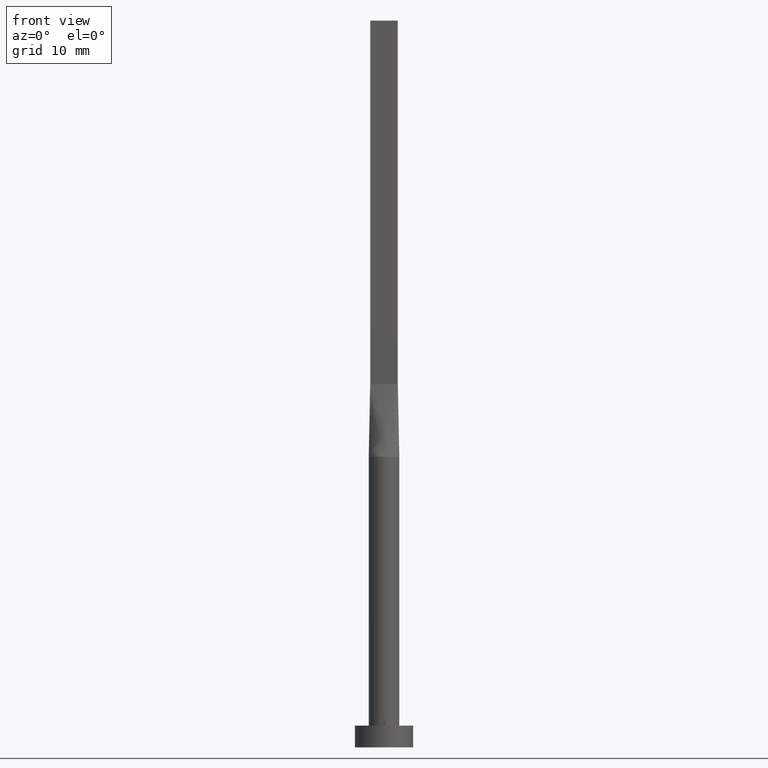
[diagram: clean part render]
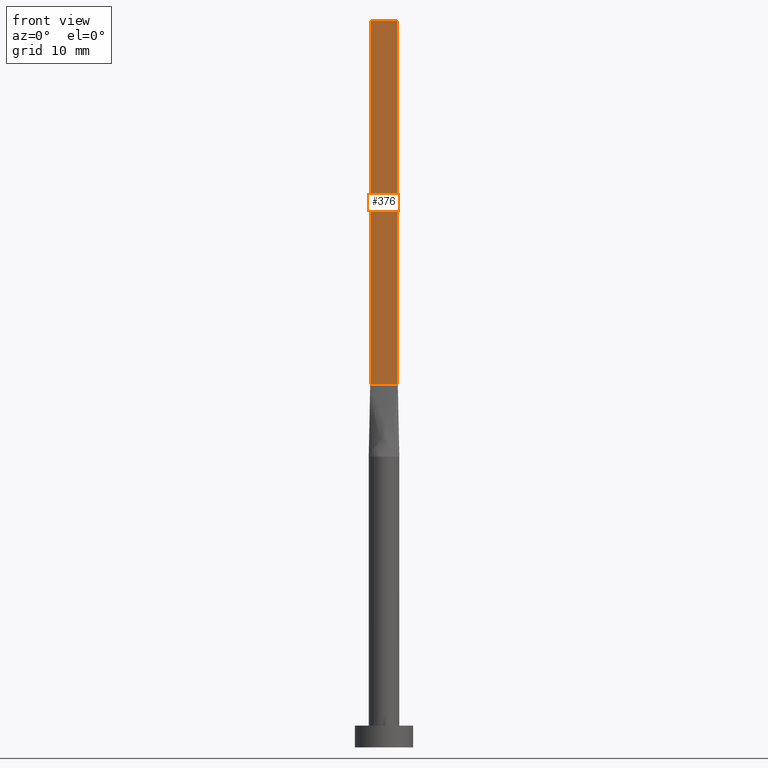
[diagram: same view with one face highlighted and labeled with its STEP entity id]
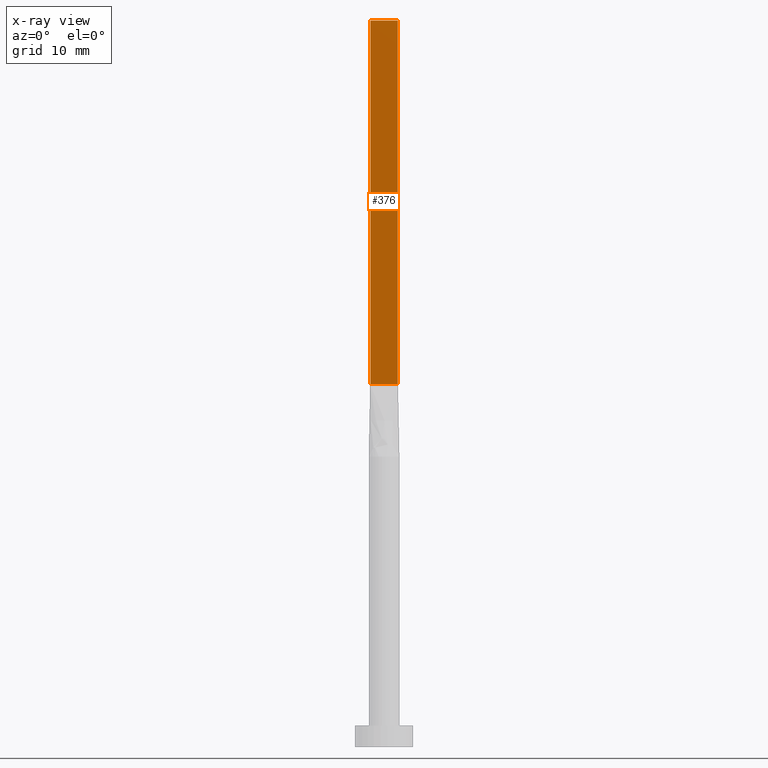
[diagram: x-ray of the same camera — body ghosted, the highlighted face saturated]
A machine part, front view. The second image highlights one B-rep face of the part: STEP entity #376.
The next image is the same camera in x-ray: the body ghosted, the highlighted face saturated — about 0% of this face is hidden behind the body in this view.
In plain terms, the highlighted planar face has unit normal (0, 1, -0).
Its self-contained STEP definition (entity closure, byte-faithful):
#26 = VECTOR ( 'NONE', #366, 1000.000000000000000 ) ;
#28 = CARTESIAN_POINT ( 'NONE',  ( 1.899999999999999023, -0.4999999999999997780, 50.00000000000000000 ) ) ;
#44 = CARTESIAN_POINT ( 'NONE',  ( -1.899999999999999911, -0.4999999999999995559, 100.0000000000000000 ) ) ;
#58 = CARTESIAN_POINT ( 'NONE',  ( -1.899999999999999911, -0.4999999999999995559, 50.00000000000000000 ) ) ;
#60 = PLANE ( 'NONE',  #316 ) ;
#82 = VERTEX_POINT ( 'NONE', #58 ) ;
#130 = VECTOR ( 'NONE', #322, 1000.000000000000000 ) ;
#137 = EDGE_CURVE ( 'NONE', #176, #82, #273, .T. ) ;
#172 = DIRECTION ( 'NONE',  ( -0.000000000000000000, -0.000000000000000000, -1.000000000000000000 ) ) ;
#174 = VECTOR ( 'NONE', #260, 1000.000000000000000 ) ;
#176 = VERTEX_POINT ( 'NONE', #315 ) ;
#196 = DIRECTION ( 'NONE',  ( 5.706327223607920020E-17, 1.000000000000000000, -0.000000000000000000 ) ) ;
#218 = ORIENTED_EDGE ( 'NONE', *, *, #511, .F. ) ;
#248 = ORIENTED_EDGE ( 'NONE', *, *, #269, .F. ) ;
#260 = DIRECTION ( 'NONE',  ( -0.000000000000000000, -0.000000000000000000, -1.000000000000000000 ) ) ;
#269 = EDGE_CURVE ( 'NONE', #176, #462, #458, .T. ) ;
#273 = LINE ( 'NONE', #44, #428 ) ;
#286 = DIRECTION ( 'NONE',  ( -1.000000000000000000, 5.706327223607920020E-17, 0.000000000000000000 ) ) ;
#287 = EDGE_CURVE ( 'NONE', #82, #477, #490, .T. ) ;
#315 = CARTESIAN_POINT ( 'NONE',  ( -1.899999999999999911, -0.4999999999999995559, 100.0000000000000000 ) ) ;
#316 = AXIS2_PLACEMENT_3D ( 'NONE', #464, #196, #286 ) ;
#322 = DIRECTION ( 'NONE',  ( 1.000000000000000000, -5.706327223607920020E-17, 0.000000000000000000 ) ) ;
#366 = DIRECTION ( 'NONE',  ( 1.000000000000000000, -5.706327223607918787E-17, 0.000000000000000000 ) ) ;
#376 = ADVANCED_FACE ( 'NONE', ( #456 ), #60, .F. ) ;
#385 = EDGE_LOOP ( 'NONE', ( #529, #218, #248, #416 ) ) ;
#416 = ORIENTED_EDGE ( 'NONE', *, *, #137, .T. ) ;
#420 = CARTESIAN_POINT ( 'NONE',  ( 1.899999999999999023, -0.4999999999999997780, 100.0000000000000000 ) ) ;
#428 = VECTOR ( 'NONE', #172, 1000.000000000000000 ) ;
#454 = CARTESIAN_POINT ( 'NONE',  ( -1.899999999999999911, -0.4999999999999995559, 100.0000000000000000 ) ) ;
#456 = FACE_OUTER_BOUND ( 'NONE', #385, .T. ) ;
#458 = LINE ( 'NONE', #454, #130 ) ;
#462 = VERTEX_POINT ( 'NONE', #420 ) ;
#464 = CARTESIAN_POINT ( 'NONE',  ( -1.899999999999999911, -0.4999999999999995559, 100.0000000000000000 ) ) ;
#477 = VERTEX_POINT ( 'NONE', #28 ) ;
#490 = LINE ( 'NONE', #502, #26 ) ;
#502 = CARTESIAN_POINT ( 'NONE',  ( -1.899999999999999911, -0.4999999999999995559, 50.00000000000000000 ) ) ;
#511 = EDGE_CURVE ( 'NONE', #462, #477, #561, .T. ) ;
#514 = CARTESIAN_POINT ( 'NONE',  ( 1.899999999999999023, -0.4999999999999997780, 100.0000000000000000 ) ) ;
#529 = ORIENTED_EDGE ( 'NONE', *, *, #287, .T. ) ;
#561 = LINE ( 'NONE', #514, #174 ) ;